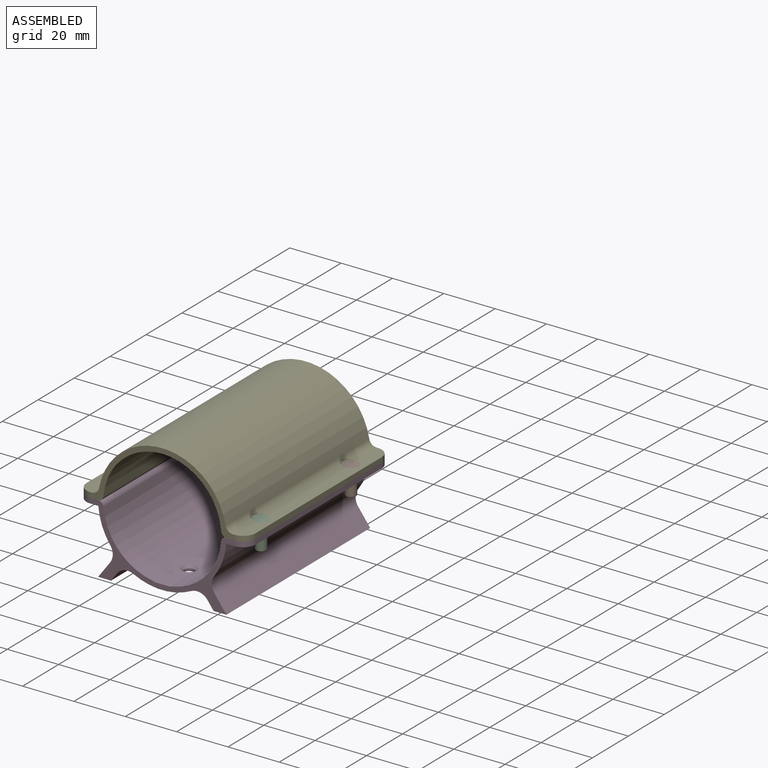
[diagram: assembled view]
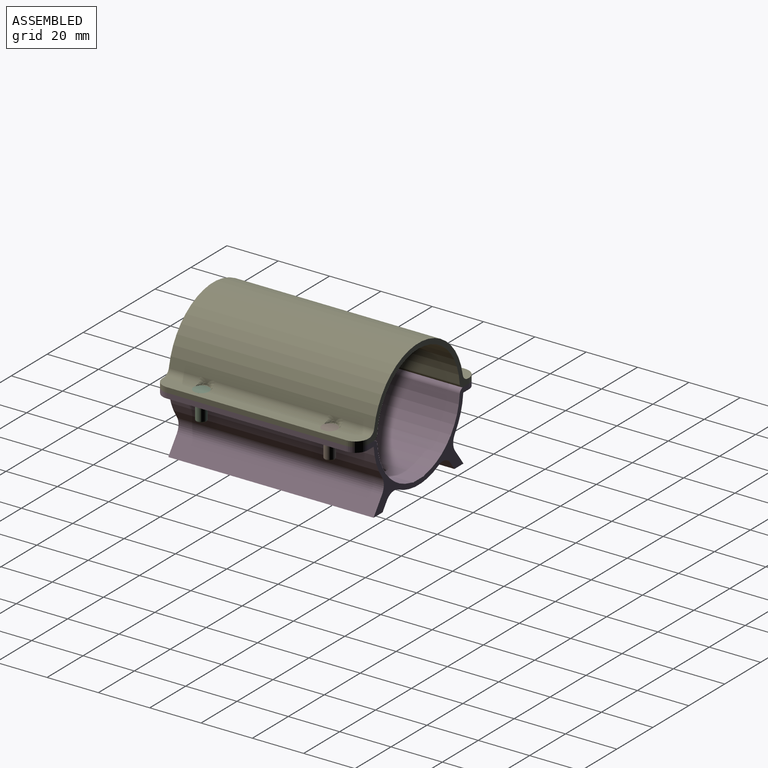
[diagram: assembled view, second angle]
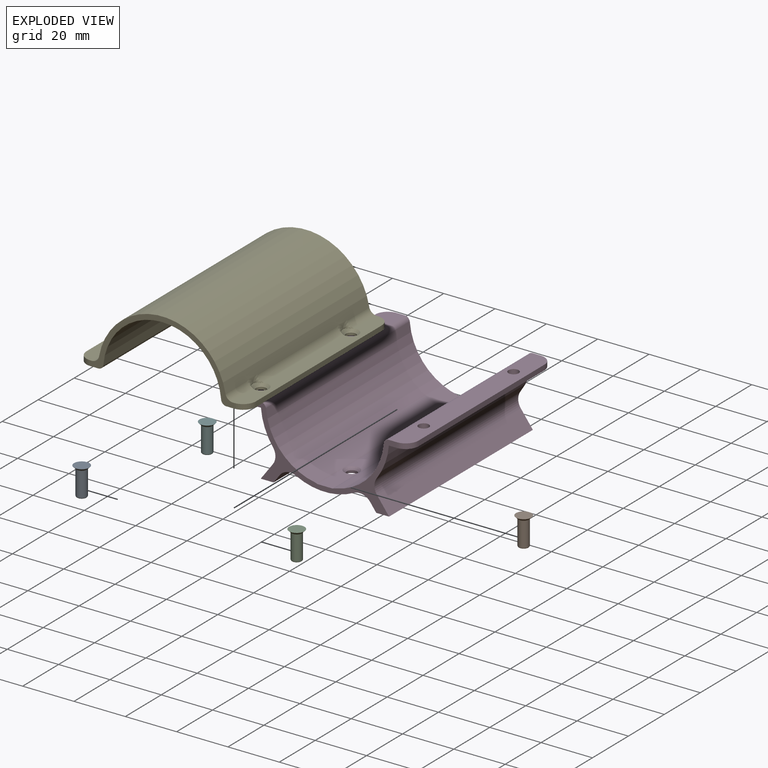
[diagram: exploded view]
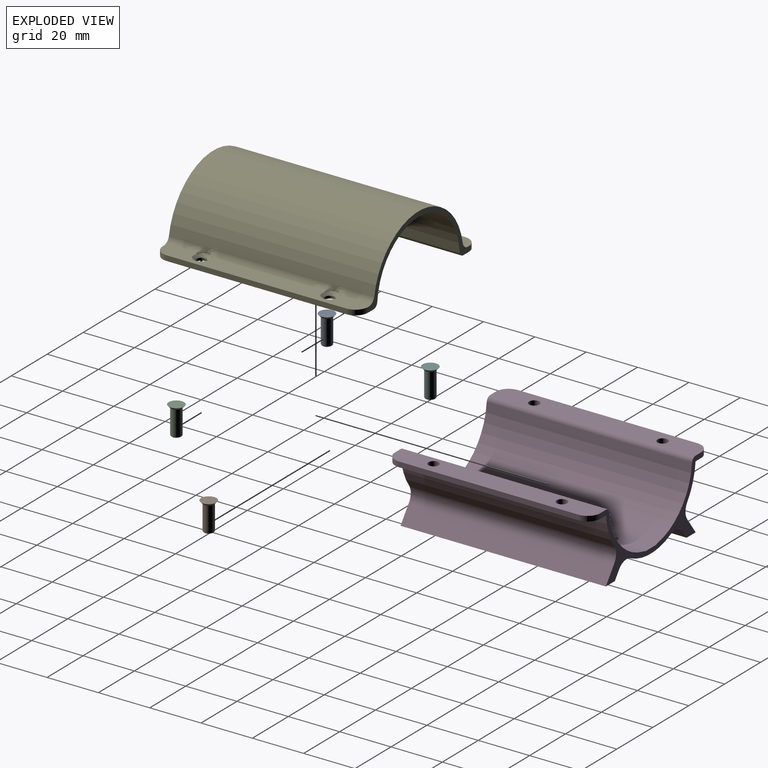
[diagram: exploded view, second angle]
ASSEMBLY  parts=6 mates=2
PART A: 5 faces, bbox 6x6x11 mm
  f0: cylinder r=2mm len=9.5mm, axis (0,0,1), area 119.4mm2, adj f3,f4
  f1: plane 3x3mm, normal (0,0,-1), area 7.1mm2, adj f4
  f2: plane 6x6mm, normal (0,0,1), area 28.3mm2, adj f3
  f3: cone r=3mm half-angle=45deg, axis (0,0,1), area 22.2mm2, adj f0,f2
  f4: torus R=1.5mm, axis (0,0,1), area 9mm2, adj f0,f1
PART B: same geometry as A
PART C: same geometry as A
PART D: 42 faces, bbox 66x80x27 mm
  f0: plane 50x6mm, normal (0,0,1), area 271.7mm2, adj f37,f39,f40,f41
  f1: plane 15x6mm, normal (0,0,1), area 75.9mm2, adj f20,f37,f39,f41
  f2: cylinder r=25mm len=80mm, axis (0,-1,0), area 1845.8mm2, adj f20,f21,f24,f25,f32,f35
  f3: plane 80x5mm, normal (0,0,-1), area 400mm2, adj f4,f19,f20,f21
  f4: plane 80x3.18mm, normal (0.8,0,-0.6), area 316.6mm2, adj f3,f20,f21,f32
  f5: plane 80x3.18mm, normal (-0.8,0,-0.6), area 316.6mm2, adj f6,f20,f21,f35
  f6: plane 80x5mm, normal (0,0,-1), area 400mm2, adj f5,f7,f20,f21
  f7: plane 80x6.36mm, normal (0.8,0,0.6), area 632.8mm2, adj f6,f20,f21,f34
  f8: cylinder r=25mm len=80mm, axis (0,-1,0), area 1092mm2, adj f9,f20,f21,f34
  f9: plane 80x8.08mm, normal (0,0,-1), area 610.5mm2, adj f8,f10,f20,f21,f26,f27,f29,f31
  f10: plane 70x2mm, normal (1,0,0), area 140mm2, adj f9,f11,f29,f31
  f11: plane 80x8.05mm, normal (0,0,1), area 608.2mm2, adj f10,f20,f21,f26,f27,f29,f31,f36
  f12: cylinder r=23mm len=80mm, axis (0,-1,0), area 2401.6mm2, adj f20,f21,f36,f39
  f13: plane 15x6mm, normal (0,0,1), area 75.9mm2, adj f21,f37,f39,f40
  f14: cylinder r=23mm len=80mm, axis (0,-1,0), area 2435.8mm2, adj f20,f21,f37,f38
  f15: plane 80x8.05mm, normal (0,0,1), area 608.3mm2, adj f16,f20,f21,f22,f23,f28,f30,f38
  f16: plane 70x2.01mm, normal (-1,0,0), area 140.5mm2, adj f15,f17,f28,f30
  f17: plane 80x8.08mm, normal (0,0,-1), area 610.7mm2, adj f16,f18,f20,f21,f22,f23,f28,f30
  f18: cylinder r=25mm len=80mm, axis (0,-1,0), area 1091.5mm2, adj f17,f20,f21,f33
  f19: plane 80x6.36mm, normal (-0.8,0,0.6), area 632.8mm2, adj f3,f20,f21,f33
  f20: plane 56x27.01mm, normal (0,1,0), area 257.1mm2, adj f1,f2,f3,f4,f5,f6,f7,f8
  f21: plane 56x27.01mm, normal (0,-1,0), area 257.1mm2, adj f2,f3,f4,f5,f6,f7,f8,f9
  f22: cylinder r=2mm len=4mm, axis (0,0,1), area 25.2mm2, adj f15,f17
  f23: cylinder r=2mm len=4mm, axis (0,0,1), area 25.2mm2, adj f15,f17
  f24: cylinder r=2mm len=4mm, axis (0,0,1), area 12.1mm2, adj f2,f40
  f25: cylinder r=2mm len=4mm, axis (0,0,1), area 12.1mm2, adj f2,f41
  f26: cylinder r=2mm len=4mm, axis (0,0,1), area 25.1mm2, adj f9,f11
  f27: cylinder r=2mm len=4mm, axis (0,0,1), area 25.1mm2, adj f9,f11
  f28: cylinder r=5mm len=5mm, axis (0,0,-1), area 15.8mm2, adj f15,f16,f17,f21
  f29: cylinder r=5mm len=5mm, axis (0,0,1), area 15.7mm2, adj f9,f10,f11,f21
  f30: cylinder r=5mm len=5mm, axis (0,0,1), area 15.8mm2, adj f15,f16,f17,f20
  f31: cylinder r=5mm len=5mm, axis (0,0,-1), area 15.7mm2, adj f9,f10,f11,f20
  f32: cylinder r=5.08mm len=80mm, axis (0,-1,0), area 569.4mm2, adj f2,f4,f20,f21
  f33: cylinder r=5.08mm len=80mm, axis (0,-1,0), area 513.5mm2, adj f18,f19,f20,f21
  f34: cylinder r=5.08mm len=80mm, axis (0,-1,0), area 513.5mm2, adj f7,f8,f20,f21
  f35: cylinder r=5.08mm len=80mm, axis (0,-1,0), area 569.4mm2, adj f2,f5,f20,f21
  f36: cylinder r=2.03mm len=80mm, axis (0,-1,0), area 242.1mm2, adj f11,f12,f20,f21
  f37: cylinder r=2.03mm len=80mm, axis (0,-1,0), area 68.9mm2, adj f0,f1,f13,f14,f20,f21
  f38: cylinder r=2.03mm len=80mm, axis (0,-1,0), area 242.1mm2, adj f14,f15,f20,f21
  f39: cylinder r=5.08mm len=80mm, axis (0,-1,0), area 102.4mm2, adj f0,f1,f12,f13,f20,f21
  f40: cone r=2mm half-angle=45deg, axis (0,0,1), area 22.2mm2, adj f0,f13,f24
  f41: cone r=2mm half-angle=45deg, axis (0,0,1), area 22.2mm2, adj f0,f1,f25
PART E: 34 faces, bbox 66x80x25 mm
  f0: plane 80x5.45mm, normal (0,0,1), area 391.6mm2, adj f7,f8,f9,f15,f17,f20,f21,f24
  f1: cylinder r=25mm len=80mm, axis (0,-1,0), area 5583mm2, adj f8,f9,f24,f25,f26,f27,f28,f29
  f2: plane 80x5.45mm, normal (0,0,1), area 391.6mm2, adj f3,f8,f9,f14,f16,f22,f23,f29
  f3: plane 70x2mm, normal (-1,0,0), area 140mm2, adj f2,f4,f14,f16
  f4: plane 80x8.05mm, normal (0,0,-1), area 608.2mm2, adj f3,f8,f9,f12,f13,f14,f16,f18
  f5: cylinder r=23mm len=80mm, axis (0,-1,0), area 5481.4mm2, adj f8,f9,f18,f19
  f6: plane 80x8.05mm, normal (0,0,-1), area 608.2mm2, adj f7,f8,f9,f10,f11,f15,f17,f19
  f7: plane 70x2mm, normal (1,0,0), area 140mm2, adj f0,f6,f15,f17
  f8: plane 56x25mm, normal (0,1,0), area 164.1mm2, adj f0,f1,f2,f4,f5,f6,f16,f17
  f9: plane 56x25mm, normal (0,-1,0), area 164.1mm2, adj f0,f1,f2,f4,f5,f6,f14,f15
  f10: cylinder r=2mm len=4mm, axis (0,0,-1), area 12.6mm2, adj f6,f20
  f11: cylinder r=2mm len=4mm, axis (0,0,-1), area 12.6mm2, adj f6,f21
  f12: cylinder r=2mm len=4mm, axis (0,0,-1), area 12.6mm2, adj f4,f22
  f13: cylinder r=2mm len=4mm, axis (0,0,-1), area 12.6mm2, adj f4,f23
  f14: cylinder r=5mm len=5mm, axis (0,0,-1), area 15.7mm2, adj f2,f3,f4,f9
  f15: cylinder r=5mm len=5mm, axis (0,0,1), area 15.7mm2, adj f0,f6,f7,f9
  f16: cylinder r=5mm len=5mm, axis (0,0,1), area 15.7mm2, adj f2,f3,f4,f8
  f17: cylinder r=5mm len=5mm, axis (0,0,-1), area 15.7mm2, adj f0,f6,f7,f8
  f18: cylinder r=2.03mm len=80mm, axis (0,-1,0), area 242.1mm2, adj f4,f5,f8,f9
  f19: cylinder r=2.03mm len=80mm, axis (0,-1,0), area 242.1mm2, adj f5,f6,f8,f9
  f20: cone r=3mm half-angle=45deg, axis (0,0,1), area 22.2mm2, adj f0,f10,f25
  f21: cone r=3mm half-angle=45deg, axis (0,0,1), area 22.2mm2, adj f0,f11,f27
  f22: cone r=2mm half-angle=45deg, axis (0,0,1), area 22.2mm2, adj f2,f12,f32
  f23: cone r=2mm half-angle=45deg, axis (0,0,1), area 22.2mm2, adj f2,f13,f30
  f24: cylinder r=3mm len=12.03mm, axis (0,-1,0), area 50.2mm2, adj f0,f1,f9,f25
  f25: bspline ~6.66x3.03mm, area 14mm2, adj f1,f20,f24,f26
  f26: cylinder r=3mm len=44.07mm, axis (0,-1,0), area 183.9mm2, adj f0,f1,f25,f27
  f27: bspline ~6.66x3.03mm, area 14mm2, adj f1,f21,f26,f28
  f28: cylinder r=3mm len=12.03mm, axis (0,-1,0), area 50.2mm2, adj f0,f1,f8,f27
  f29: cylinder r=3mm len=12.03mm, axis (0,-1,0), area 50.2mm2, adj f1,f2,f9,f30
  f30: bspline ~6.66x3.03mm, area 14mm2, adj f1,f23,f29,f31
  f31: cylinder r=3mm len=44.07mm, axis (0,-1,0), area 183.9mm2, adj f1,f2,f30,f32
  f32: bspline ~6.66x3.03mm, area 14mm2, adj f1,f22,f31,f33
  f33: cylinder r=3mm len=12.03mm, axis (0,-1,0), area 50.2mm2, adj f1,f2,f8,f32
PART F: same geometry as A
PLACE A t=(-28.47,-26.62,12.48)mm
PLACE B t=(27.53,23.38,12.48)mm
PLACE C t=(27.53,-26.62,12.48)mm
PLACE D t=(-0.47,-41.62,11.48)mm fixed
PLACE E t=(-0.47,-41.62,11.48)mm
PLACE F t=(-28.47,23.38,12.48)mm
MATE cylindrical A.f3 <-> E.f13  axis (0,0,1) through (-28.47,-26.62,13.48)mm
MATE slider E.f1 <-> D.f14  axis (0,-1,0) through (-0.47,-41.62,11.48)mm
